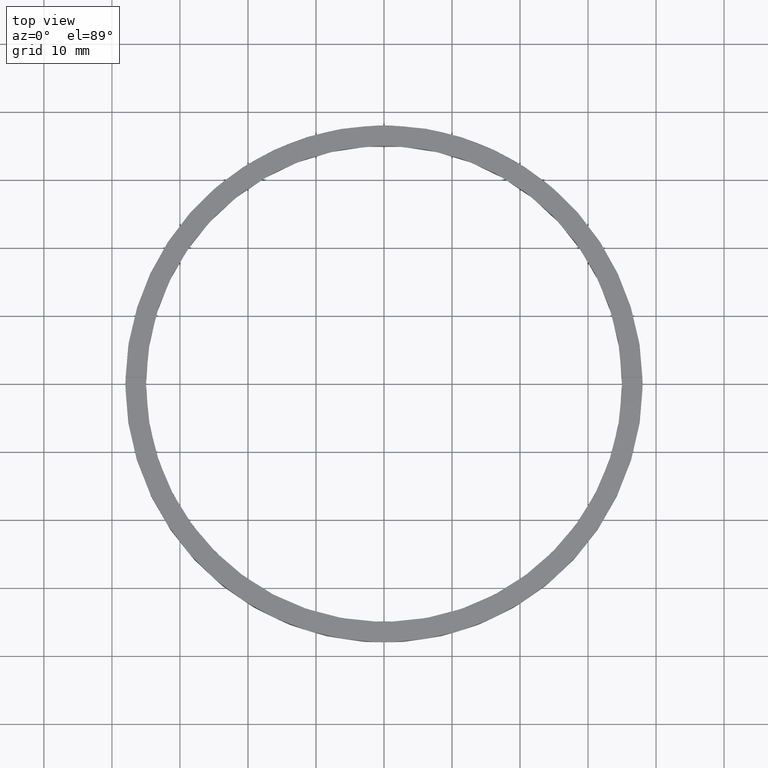
[diagram: clean part render]
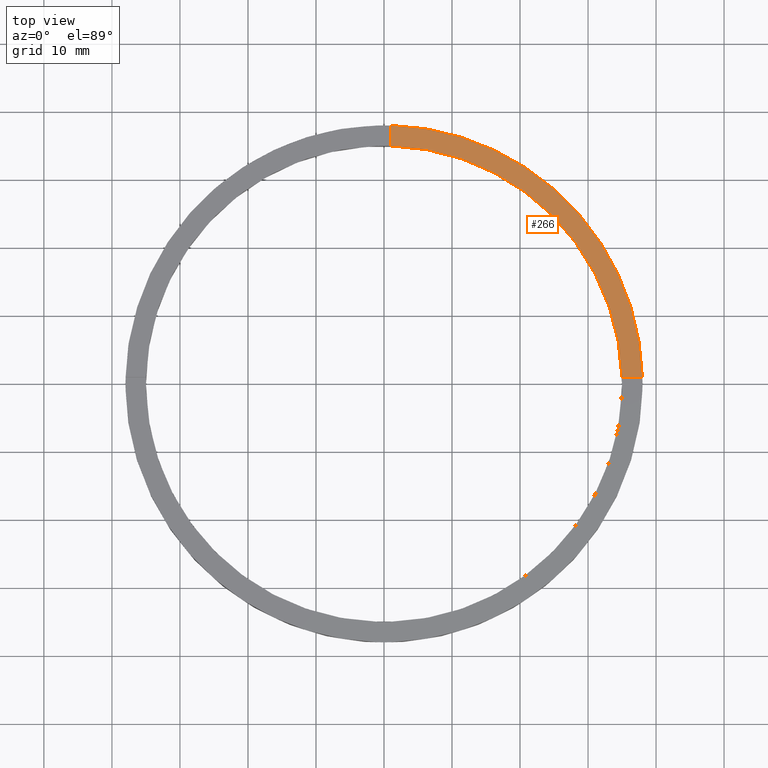
[diagram: same view with one face highlighted and labeled with its STEP entity id]
A machine part, top view. The second image highlights one B-rep face of the part: STEP entity #266.
In plain terms, the highlighted planar face has unit normal (0, 0, 1).
Its self-contained STEP definition (entity closure, byte-faithful):
#10 = AXIS2_PLACEMENT_3D ( 'NONE', #432, #683, #435 ) ;
#40 = CARTESIAN_POINT ( 'NONE',  ( 37.98683982644516277, 0.9999999999998425704, 3.500000000000000000 ) ) ;
#58 = CIRCLE ( 'NONE', #267, 38.00000000000000000 ) ;
#59 = LINE ( 'NONE', #61, #598 ) ;
#61 = CARTESIAN_POINT ( 'NONE',  ( 0.9999999999999746869, 27.99999999999999645, 3.500000000000000000 ) ) ;
#72 = DIRECTION ( 'NONE',  ( 0.000000000000000000, 1.000000000000000000, 0.000000000000000000 ) ) ;
#89 = CARTESIAN_POINT ( 'NONE',  ( 27.99999999999998934, 0.9999999999998419042, 3.500000000000000000 ) ) ;
#122 = VERTEX_POINT ( 'NONE', #321 ) ;
#142 = EDGE_CURVE ( 'NONE', #427, #770, #475, .T. ) ;
#219 = VECTOR ( 'NONE', #349, 1000.000000000000000 ) ;
#222 = ORIENTED_EDGE ( 'NONE', *, *, #300, .F. ) ;
#247 = ORIENTED_EDGE ( 'NONE', *, *, #716, .T. ) ;
#264 = CARTESIAN_POINT ( 'NONE',  ( 0.9999999999999746869, 34.98571136907180801, 3.500000000000000000 ) ) ;
#266 = ADVANCED_FACE ( 'NONE', ( #320 ), #777, .T. ) ;
#267 = AXIS2_PLACEMENT_3D ( 'NONE', #566, #743, #393 ) ;
#275 = AXIS2_PLACEMENT_3D ( 'NONE', #562, #740, #390 ) ;
#300 = EDGE_CURVE ( 'NONE', #770, #462, #306, .T. ) ;
#306 = CIRCLE ( 'NONE', #275, 35.00000000000000711 ) ;
#311 = CARTESIAN_POINT ( 'NONE',  ( 34.98571136907181511, 0.9999999999998423483, 3.500000000000000000 ) ) ;
#320 = FACE_OUTER_BOUND ( 'NONE', #671, .T. ) ;
#321 = CARTESIAN_POINT ( 'NONE',  ( 0.9999999999999746869, 37.98683982644515567, 3.500000000000000000 ) ) ;
#349 = DIRECTION ( 'NONE',  ( -1.000000000000000000, -6.505213034913025371E-17, -0.000000000000000000 ) ) ;
#380 = EDGE_CURVE ( 'NONE', #462, #122, #59, .T. ) ;
#390 = DIRECTION ( 'NONE',  ( 1.000000000000000000, 0.000000000000000000, 0.000000000000000000 ) ) ;
#393 = DIRECTION ( 'NONE',  ( 1.000000000000000000, 0.000000000000000000, 0.000000000000000000 ) ) ;
#427 = VERTEX_POINT ( 'NONE', #40 ) ;
#432 = CARTESIAN_POINT ( 'NONE',  ( 0.000000000000000000, 0.000000000000000000, 3.500000000000000000 ) ) ;
#435 = DIRECTION ( 'NONE',  ( 1.000000000000000000, 0.000000000000000000, -0.000000000000000000 ) ) ;
#462 = VERTEX_POINT ( 'NONE', #264 ) ;
#475 = LINE ( 'NONE', #89, #219 ) ;
#508 = ORIENTED_EDGE ( 'NONE', *, *, #142, .F. ) ;
#562 = CARTESIAN_POINT ( 'NONE',  ( 0.000000000000000000, 0.000000000000000000, 3.500000000000000000 ) ) ;
#566 = CARTESIAN_POINT ( 'NONE',  ( 0.000000000000000000, 0.000000000000000000, 3.500000000000000000 ) ) ;
#598 = VECTOR ( 'NONE', #72, 1000.000000000000000 ) ;
#671 = EDGE_LOOP ( 'NONE', ( #698, #222, #508, #247 ) ) ;
#683 = DIRECTION ( 'NONE',  ( 0.000000000000000000, 0.000000000000000000, 1.000000000000000000 ) ) ;
#698 = ORIENTED_EDGE ( 'NONE', *, *, #380, .F. ) ;
#716 = EDGE_CURVE ( 'NONE', #427, #122, #58, .T. ) ;
#740 = DIRECTION ( 'NONE',  ( 0.000000000000000000, 0.000000000000000000, 1.000000000000000000 ) ) ;
#743 = DIRECTION ( 'NONE',  ( 0.000000000000000000, 0.000000000000000000, 1.000000000000000000 ) ) ;
#770 = VERTEX_POINT ( 'NONE', #311 ) ;
#777 = PLANE ( 'NONE',  #10 ) ;